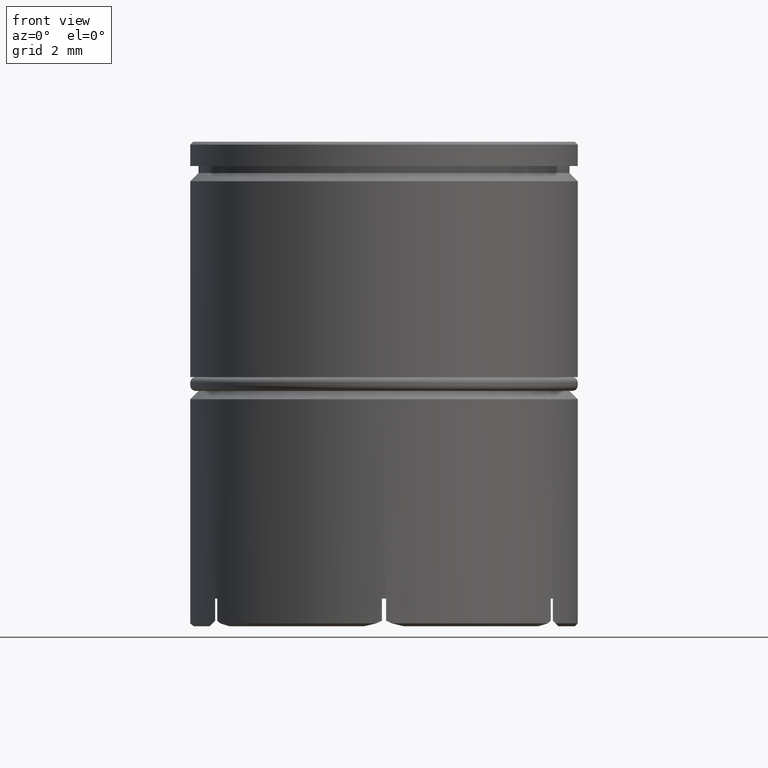
[diagram: clean part render]
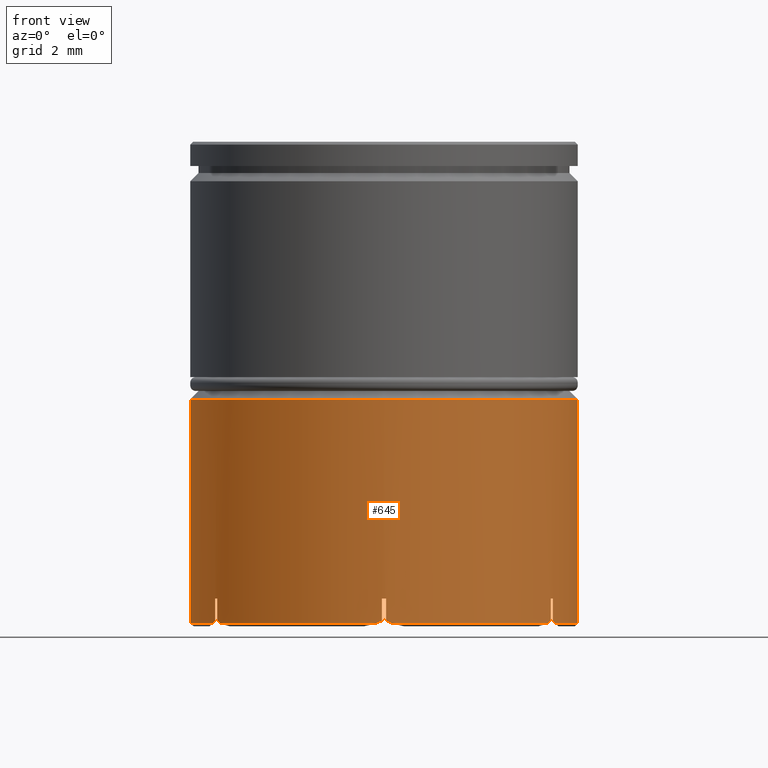
[diagram: same view with one face highlighted and labeled with its STEP entity id]
A machine part, front view. The second image highlights one B-rep face of the part: STEP entity #645.
In plain terms, the highlighted cylindrical surface (partial cylindrical patch) has radius 7 mm, axis along (-0, -0, 1).
Its self-contained STEP definition (entity closure, byte-faithful):
#3 = ORIENTED_EDGE ( 'NONE', *, *, #1076, .F. ) ;
#5 = CARTESIAN_POINT ( 'NONE',  ( -6.023634140239850332, -3.565926491746141735, -17.30000000000000071 ) ) ;
#21 = CYLINDRICAL_SURFACE ( 'NONE', #788, 7.000000000000000888 ) ;
#34 = LINE ( 'NONE', #397, #674 ) ;
#76 = VERTEX_POINT ( 'NONE', #1491 ) ;
#88 = VECTOR ( 'NONE', #664, 1000.000000000000000 ) ;
#89 = LINE ( 'NONE', #1561, #1261 ) ;
#93 = CARTESIAN_POINT ( 'NONE',  ( 0.000000000000000000, 0.000000000000000000, -9.300000000000002487 ) ) ;
#95 = ORIENTED_EDGE ( 'NONE', *, *, #278, .F. ) ;
#109 = CARTESIAN_POINT ( 'NONE',  ( 6.100000000000003197, -3.433656942677874468, -17.30000000000000071 ) ) ;
#120 = DIRECTION ( 'NONE',  ( -0.000000000000000000, -0.000000000000000000, 1.000000000000000000 ) ) ;
#137 = CARTESIAN_POINT ( 'NONE',  ( 0.000000000000000000, 0.000000000000000000, -17.39999999999999858 ) ) ;
#150 =( BOUNDED_CURVE ( )  B_SPLINE_CURVE ( 3, ( #336, #1617, #1355, #989 ),
 .UNSPECIFIED., .F., .T. ) 
 B_SPLINE_CURVE_WITH_KNOTS ( ( 4, 4 ),
 ( 3.624358576915526431, 3.654281804241772846 ),
 .UNSPECIFIED. ) 
 CURVE ( )  GEOMETRIC_REPRESENTATION_ITEM ( )  RATIONAL_B_SPLINE_CURVE ( ( 1.000000000000000000, 0.9999253847640983128, 0.9999253847640983128, 1.000000000000000000 ) ) 
 REPRESENTATION_ITEM ( '' )  );
#155 = CARTESIAN_POINT ( 'NONE',  ( 0.000000000000000000, 0.000000000000000000, -17.39999999999999858 ) ) ;
#176 = EDGE_CURVE ( 'NONE', #738, #1210, #1346, .T. ) ;
#179 = ORIENTED_EDGE ( 'NONE', *, *, #770, .T. ) ;
#188 = DIRECTION ( 'NONE',  ( -0.000000000000000000, -0.000000000000000000, 1.000000000000000000 ) ) ;
#199 = EDGE_CURVE ( 'NONE', #1315, #248, #778, .T. ) ;
#223 = ORIENTED_EDGE ( 'NONE', *, *, #759, .T. ) ;
#233 = DIRECTION ( 'NONE',  ( -0.000000000000000000, -0.000000000000000000, 1.000000000000000000 ) ) ;
#235 = CARTESIAN_POINT ( 'NONE',  ( 0.07636585976015727861, -6.999583434424017092, -17.30000000000000071 ) ) ;
#248 = VERTEX_POINT ( 'NONE', #1398 ) ;
#252 = DIRECTION ( 'NONE',  ( 0.000000000000000000, 0.000000000000000000, -1.000000000000000000 ) ) ;
#258 = CARTESIAN_POINT ( 'NONE',  ( -5.988064803512614276, -3.626010924656295042, -17.33424997690855918 ) ) ;
#262 = CARTESIAN_POINT ( 'NONE',  ( -6.100000000000003197, -3.433656942677875357, -16.50000000000000000 ) ) ;
#264 = VERTEX_POINT ( 'NONE', #407 ) ;
#278 = EDGE_CURVE ( 'NONE', #1315, #969, #34, .T. ) ;
#285 = CARTESIAN_POINT ( 'NONE',  ( -5.951600521272996325, -3.685556477925193697, -17.36758579760201471 ) ) ;
#286 = CARTESIAN_POINT ( 'NONE',  ( -0.07636585976015554389, -6.999583434424017092, -17.30000000000000071 ) ) ;
#291 = DIRECTION ( 'NONE',  ( 1.000000000000000000, 0.000000000000000000, 0.000000000000000000 ) ) ;
#292 = ORIENTED_EDGE ( 'NONE', *, *, #307, .T. ) ;
#307 = EDGE_CURVE ( 'NONE', #556, #1230, #1289, .T. ) ;
#328 = DIRECTION ( 'NONE',  ( 0.000000000000000000, 0.000000000000000000, -1.000000000000000000 ) ) ;
#333 = DIRECTION ( 'NONE',  ( -1.000000000000000000, 0.000000000000000000, 0.000000000000000000 ) ) ;
#336 = CARTESIAN_POINT ( 'NONE',  ( 5.914249455894056595, -3.744549822536331174, -17.39999999999999858 ) ) ;
#355 = EDGE_CURVE ( 'NONE', #1127, #1456, #1073, .T. ) ;
#357 = EDGE_CURVE ( 'NONE', #431, #1153, #814, .T. ) ;
#368 = AXIS2_PLACEMENT_3D ( 'NONE', #1102, #1603, #456 ) ;
#385 = CARTESIAN_POINT ( 'NONE',  ( -0.1461851733959461941, -6.998821701677545803, -17.33424997690855562 ) ) ;
#391 = EDGE_CURVE ( 'NONE', #1153, #631, #522, .T. ) ;
#397 = CARTESIAN_POINT ( 'NONE',  ( 0.07636585976015727861, -6.999583434424017092, 0.000000000000000000 ) ) ;
#407 = CARTESIAN_POINT ( 'NONE',  ( 5.914249455894056595, -3.744549822536331174, -17.39999999999999858 ) ) ;
#408 = CARTESIAN_POINT ( 'NONE',  ( 6.100000000000003197, -3.433656942677874468, 0.000000000000000000 ) ) ;
#409 = ORIENTED_EDGE ( 'NONE', *, *, #1624, .T. ) ;
#411 = FACE_OUTER_BOUND ( 'NONE', #1471, .T. ) ;
#415 = DIRECTION ( 'NONE',  ( -0.000000000000000000, -0.000000000000000000, 1.000000000000000000 ) ) ;
#431 = VERTEX_POINT ( 'NONE', #1019 ) ;
#433 = DIRECTION ( 'NONE',  ( -1.000000000000000000, 0.000000000000000000, 0.000000000000000000 ) ) ;
#435 = VERTEX_POINT ( 'NONE', #1282 ) ;
#438 = EDGE_CURVE ( 'NONE', #1041, #738, #1072, .T. ) ;
#442 = ORIENTED_EDGE ( 'NONE', *, *, #715, .F. ) ;
#446 = DIRECTION ( 'NONE',  ( -0.000000000000000000, -0.000000000000000000, 1.000000000000000000 ) ) ;
#453 = AXIS2_PLACEMENT_3D ( 'NONE', #93, #1249, #1591 ) ;
#456 = DIRECTION ( 'NONE',  ( -1.000000000000000000, 0.000000000000000000, 0.000000000000000000 ) ) ;
#466 = ORIENTED_EDGE ( 'NONE', *, *, #848, .T. ) ;
#468 = CARTESIAN_POINT ( 'NONE',  ( -6.100000000000003197, -3.433656942677875357, -17.30000000000000071 ) ) ;
#515 = CARTESIAN_POINT ( 'NONE',  ( -5.914249455894059260, -3.744549822536325401, -17.39999999999999858 ) ) ;
#522 = LINE ( 'NONE', #1513, #88 ) ;
#535 = AXIS2_PLACEMENT_3D ( 'NONE', #1582, #188, #433 ) ;
#536 = CIRCLE ( 'NONE', #1318, 7.000000000000000888 ) ;
#556 = VERTEX_POINT ( 'NONE', #633 ) ;
#582 = DIRECTION ( 'NONE',  ( -1.000000000000000000, 5.329070518200751394E-14, 0.000000000000000000 ) ) ;
#585 = CIRCLE ( 'NONE', #535, 7.000000000000000888 ) ;
#588 = VERTEX_POINT ( 'NONE', #1036 ) ;
#605 = ORIENTED_EDGE ( 'NONE', *, *, #850, .T. ) ;
#610 = ORIENTED_EDGE ( 'NONE', *, *, #391, .T. ) ;
#625 = CARTESIAN_POINT ( 'NONE',  ( 6.023634140239847667, -3.565926491746145288, -17.30000000000000071 ) ) ;
#631 = VERTEX_POINT ( 'NONE', #812 ) ;
#633 = CARTESIAN_POINT ( 'NONE',  ( -6.023634140239850332, -3.565926491746141735, -17.30000000000000071 ) ) ;
#643 = CARTESIAN_POINT ( 'NONE',  ( -0.2857505441059412510, -6.994165184390713108, -17.39999999999999858 ) ) ;
#645 = ADVANCED_FACE ( 'NONE', ( #411 ), #21, .T. ) ;
#653 = ORIENTED_EDGE ( 'NONE', *, *, #1335, .F. ) ;
#663 = DIRECTION ( 'NONE',  ( 0.000000000000000000, 0.000000000000000000, -1.000000000000000000 ) ) ;
#664 = DIRECTION ( 'NONE',  ( -0.000000000000000000, -0.000000000000000000, 1.000000000000000000 ) ) ;
#669 = LINE ( 'NONE', #1399, #1465 ) ;
#674 = VECTOR ( 'NONE', #929, 1000.000000000000000 ) ;
#678 = CARTESIAN_POINT ( 'NONE',  ( -0.2857505441059412510, -6.994165184390713108, -17.39999999999999858 ) ) ;
#700 = ORIENTED_EDGE ( 'NONE', *, *, #1114, .F. ) ;
#706 = AXIS2_PLACEMENT_3D ( 'NONE', #1613, #415, #333 ) ;
#715 = EDGE_CURVE ( 'NONE', #1089, #1210, #796, .T. ) ;
#717 = CARTESIAN_POINT ( 'NONE',  ( -6.200000000000000178, -3.249615361854388595, -17.39999999999999858 ) ) ;
#719 = VERTEX_POINT ( 'NONE', #1172 ) ;
#720 = CARTESIAN_POINT ( 'NONE',  ( 7.000000000000000888, 0.000000000000000000, -17.39999999999999858 ) ) ;
#723 = CARTESIAN_POINT ( 'NONE',  ( 6.167585797602020747, -3.311459005636522068, -17.36758579760201471 ) ) ;
#731 = ORIENTED_EDGE ( 'NONE', *, *, #357, .T. ) ;
#736 = VERTEX_POINT ( 'NONE', #1332 ) ;
#738 = VERTEX_POINT ( 'NONE', #717 ) ;
#747 = LINE ( 'NONE', #1397, #864 ) ;
#759 = EDGE_CURVE ( 'NONE', #1089, #588, #916, .T. ) ;
#761 = CARTESIAN_POINT ( 'NONE',  ( 0.2159852763290228406, -6.997015483561718874, -17.36758579760201471 ) ) ;
#770 = EDGE_CURVE ( 'NONE', #1230, #1127, #585, .T. ) ;
#778 =( BOUNDED_CURVE ( )  B_SPLINE_CURVE ( 3, ( #235, #998, #761, #893 ),
 .UNSPECIFIED., .F., .T. ) 
 B_SPLINE_CURVE_WITH_KNOTS ( ( 4, 4 ),
 ( 2.628903502937813386, 2.658826730264059801 ),
 .UNSPECIFIED. ) 
 CURVE ( )  GEOMETRIC_REPRESENTATION_ITEM ( )  RATIONAL_B_SPLINE_CURVE ( ( 1.000000000000000000, 0.9999253847640983128, 0.9999253847640983128, 1.000000000000000000 ) ) 
 REPRESENTATION_ITEM ( '' )  );
#788 = AXIS2_PLACEMENT_3D ( 'NONE', #933, #1288, #291 ) ;
#790 = CIRCLE ( 'NONE', #368, 7.000000000000000888 ) ;
#796 = LINE ( 'NONE', #1299, #1416 ) ;
#812 = CARTESIAN_POINT ( 'NONE',  ( 7.000000000000000888, 0.000000000000000000, -9.300000000000002487 ) ) ;
#814 = CIRCLE ( 'NONE', #1571, 7.000000000000000888 ) ;
#837 = VECTOR ( 'NONE', #120, 1000.000000000000000 ) ;
#848 = EDGE_CURVE ( 'NONE', #736, #76, #536, .T. ) ;
#850 = EDGE_CURVE ( 'NONE', #719, #969, #790, .T. ) ;
#854 = CARTESIAN_POINT ( 'NONE',  ( -5.914249455894059260, -3.744549822536325401, -17.39999999999999858 ) ) ;
#856 = ORIENTED_EDGE ( 'NONE', *, *, #199, .T. ) ;
#861 = ORIENTED_EDGE ( 'NONE', *, *, #438, .T. ) ;
#862 = CIRCLE ( 'NONE', #706, 7.000000000000000888 ) ;
#864 = VECTOR ( 'NONE', #252, 1000.000000000000000 ) ;
#873 = EDGE_CURVE ( 'NONE', #435, #431, #1567, .T. ) ;
#893 = CARTESIAN_POINT ( 'NONE',  ( 0.2857505441059460249, -6.994165184390713108, -17.39999999999999858 ) ) ;
#901 = LINE ( 'NONE', #408, #1156 ) ;
#902 = EDGE_CURVE ( 'NONE', #264, #1325, #150, .T. ) ;
#906 = DIRECTION ( 'NONE',  ( -1.000000000000000000, 3.552713678800500929E-15, 0.000000000000000000 ) ) ;
#908 = CARTESIAN_POINT ( 'NONE',  ( -6.200000000000000178, -3.249615361854388595, -17.39999999999999858 ) ) ;
#910 = VERTEX_POINT ( 'NONE', #1126 ) ;
#916 = CIRCLE ( 'NONE', #1125, 7.000000000000000888 ) ;
#926 = CARTESIAN_POINT ( 'NONE',  ( -0.2159852763290208699, -6.997015483561718874, -17.36758579760201471 ) ) ;
#929 = DIRECTION ( 'NONE',  ( -0.000000000000000000, -0.000000000000000000, 1.000000000000000000 ) ) ;
#933 = CARTESIAN_POINT ( 'NONE',  ( 0.000000000000000000, 0.000000000000000000, 0.000000000000000000 ) ) ;
#955 = DIRECTION ( 'NONE',  ( -1.000000000000000000, -2.664535259100375697E-15, 0.000000000000000000 ) ) ;
#968 = CARTESIAN_POINT ( 'NONE',  ( 0.000000000000000000, 0.000000000000000000, -16.50000000000000000 ) ) ;
#969 = VERTEX_POINT ( 'NONE', #1382 ) ;
#981 = LINE ( 'NONE', #1259, #837 ) ;
#989 = CARTESIAN_POINT ( 'NONE',  ( 6.023634140239847667, -3.565926491746145288, -17.30000000000000071 ) ) ;
#990 = EDGE_CURVE ( 'NONE', #556, #588, #981, .T. ) ;
#994 = DIRECTION ( 'NONE',  ( -1.000000000000000000, 0.000000000000000000, 0.000000000000000000 ) ) ;
#998 = CARTESIAN_POINT ( 'NONE',  ( 0.1461851733959463606, -6.998821701677544915, -17.33424997690855562 ) ) ;
#1013 = DIRECTION ( 'NONE',  ( -0.000000000000000000, -0.000000000000000000, 1.000000000000000000 ) ) ;
#1019 = CARTESIAN_POINT ( 'NONE',  ( 6.200000000000001066, -3.249615361854383266, -17.39999999999999858 ) ) ;
#1026 = CARTESIAN_POINT ( 'NONE',  ( -6.134249976908560775, -3.372810777021251649, -17.33424997690855918 ) ) ;
#1036 = CARTESIAN_POINT ( 'NONE',  ( -6.023634140239851220, -3.565926491746138183, -16.50000000000000000 ) ) ;
#1041 = VERTEX_POINT ( 'NONE', #1405 ) ;
#1052 = CIRCLE ( 'NONE', #453, 7.000000000000000888 ) ;
#1072 = CIRCLE ( 'NONE', #1623, 7.000000000000000888 ) ;
#1073 =( BOUNDED_CURVE ( )  B_SPLINE_CURVE ( 3, ( #643, #926, #385, #1300 ),
 .UNSPECIFIED., .F., .T. ) 
 B_SPLINE_CURVE_WITH_KNOTS ( ( 4, 4 ),
 ( 3.624358576915527319, 3.654281804241773290 ),
 .UNSPECIFIED. ) 
 CURVE ( )  GEOMETRIC_REPRESENTATION_ITEM ( )  RATIONAL_B_SPLINE_CURVE ( ( 1.000000000000000000, 0.9999253847640983128, 0.9999253847640983128, 1.000000000000000000 ) ) 
 REPRESENTATION_ITEM ( '' )  );
#1076 = EDGE_CURVE ( 'NONE', #435, #76, #901, .T. ) ;
#1089 = VERTEX_POINT ( 'NONE', #262 ) ;
#1102 = CARTESIAN_POINT ( 'NONE',  ( 0.000000000000000000, 0.000000000000000000, -16.50000000000000000 ) ) ;
#1107 = ORIENTED_EDGE ( 'NONE', *, *, #176, .T. ) ;
#1110 = ORIENTED_EDGE ( 'NONE', *, *, #902, .T. ) ;
#1114 = EDGE_CURVE ( 'NONE', #1041, #910, #669, .T. ) ;
#1123 = ORIENTED_EDGE ( 'NONE', *, *, #355, .T. ) ;
#1125 = AXIS2_PLACEMENT_3D ( 'NONE', #1342, #446, #955 ) ;
#1126 = CARTESIAN_POINT ( 'NONE',  ( -7.000000000000000888, 8.572527594031474176E-16, -9.300000000000002487 ) ) ;
#1127 = VERTEX_POINT ( 'NONE', #678 ) ;
#1153 = VERTEX_POINT ( 'NONE', #720 ) ;
#1156 = VECTOR ( 'NONE', #1013, 1000.000000000000000 ) ;
#1160 = CARTESIAN_POINT ( 'NONE',  ( -6.100000000000003197, -3.433656942677875357, -17.30000000000000071 ) ) ;
#1168 = CARTESIAN_POINT ( 'NONE',  ( -6.167585797602018083, -3.311459005636527841, -17.36758579760201471 ) ) ;
#1172 = CARTESIAN_POINT ( 'NONE',  ( -0.07636585976015164423, -6.999583434424015316, -16.50000000000000000 ) ) ;
#1177 = DIRECTION ( 'NONE',  ( -0.000000000000000000, -0.000000000000000000, 1.000000000000000000 ) ) ;
#1194 = EDGE_CURVE ( 'NONE', #719, #1456, #89, .T. ) ;
#1210 = VERTEX_POINT ( 'NONE', #468 ) ;
#1214 = ORIENTED_EDGE ( 'NONE', *, *, #1223, .T. ) ;
#1223 = EDGE_CURVE ( 'NONE', #248, #264, #862, .T. ) ;
#1225 = DIRECTION ( 'NONE',  ( -0.000000000000000000, -0.000000000000000000, 1.000000000000000000 ) ) ;
#1230 = VERTEX_POINT ( 'NONE', #854 ) ;
#1233 = CARTESIAN_POINT ( 'NONE',  ( 6.200000000000001066, -3.249615361854383266, -17.39999999999999858 ) ) ;
#1249 = DIRECTION ( 'NONE',  ( 0.000000000000000000, 0.000000000000000000, -1.000000000000000000 ) ) ;
#1259 = CARTESIAN_POINT ( 'NONE',  ( -6.023634140239850332, -3.565926491746141735, 0.000000000000000000 ) ) ;
#1261 = VECTOR ( 'NONE', #328, 1000.000000000000000 ) ;
#1282 = CARTESIAN_POINT ( 'NONE',  ( 6.100000000000003197, -3.433656942677874468, -17.30000000000000071 ) ) ;
#1288 = DIRECTION ( 'NONE',  ( -0.000000000000000000, -0.000000000000000000, 1.000000000000000000 ) ) ;
#1289 =( BOUNDED_CURVE ( )  B_SPLINE_CURVE ( 3, ( #5, #258, #285, #515 ),
 .UNSPECIFIED., .F., .T. ) 
 B_SPLINE_CURVE_WITH_KNOTS ( ( 4, 4 ),
 ( 2.628903502937813830, 2.658826730264059357 ),
 .UNSPECIFIED. ) 
 CURVE ( )  GEOMETRIC_REPRESENTATION_ITEM ( )  RATIONAL_B_SPLINE_CURVE ( ( 1.000000000000000000, 0.9999253847640983128, 0.9999253847640983128, 1.000000000000000000 ) ) 
 REPRESENTATION_ITEM ( '' )  );
#1299 = CARTESIAN_POINT ( 'NONE',  ( -6.100000000000003197, -3.433656942677875357, 0.000000000000000000 ) ) ;
#1300 = CARTESIAN_POINT ( 'NONE',  ( -0.07636585976015554389, -6.999583434424017092, -17.30000000000000071 ) ) ;
#1315 = VERTEX_POINT ( 'NONE', #1533 ) ;
#1318 = AXIS2_PLACEMENT_3D ( 'NONE', #968, #1225, #582 ) ;
#1325 = VERTEX_POINT ( 'NONE', #625 ) ;
#1332 = CARTESIAN_POINT ( 'NONE',  ( 6.023634140239849444, -3.565926491746140847, -16.50000000000000000 ) ) ;
#1335 = EDGE_CURVE ( 'NONE', #736, #1325, #747, .T. ) ;
#1342 = CARTESIAN_POINT ( 'NONE',  ( 0.000000000000000000, 0.000000000000000000, -16.50000000000000000 ) ) ;
#1344 = ORIENTED_EDGE ( 'NONE', *, *, #990, .F. ) ;
#1346 =( BOUNDED_CURVE ( )  B_SPLINE_CURVE ( 3, ( #908, #1168, #1026, #1160 ),
 .UNSPECIFIED., .F., .T. ) 
 B_SPLINE_CURVE_WITH_KNOTS ( ( 4, 4 ),
 ( 3.624358576915527763, 3.654281804241773290 ),
 .UNSPECIFIED. ) 
 CURVE ( )  GEOMETRIC_REPRESENTATION_ITEM ( )  RATIONAL_B_SPLINE_CURVE ( ( 1.000000000000000000, 0.9999253847640983128, 0.9999253847640983128, 1.000000000000000000 ) ) 
 REPRESENTATION_ITEM ( '' )  );
#1355 = CARTESIAN_POINT ( 'NONE',  ( 5.988064803512612500, -3.626010924656296375, -17.33424997690855562 ) ) ;
#1382 = CARTESIAN_POINT ( 'NONE',  ( 0.07636585976015337895, -6.999583434424016204, -16.50000000000000000 ) ) ;
#1397 = CARTESIAN_POINT ( 'NONE',  ( 6.023634140239847667, -3.565926491746145288, 0.000000000000000000 ) ) ;
#1398 = CARTESIAN_POINT ( 'NONE',  ( 0.2857505441059460249, -6.994165184390713108, -17.39999999999999858 ) ) ;
#1399 = CARTESIAN_POINT ( 'NONE',  ( -7.000000000000000888, 8.572527594031474176E-16, 0.000000000000000000 ) ) ;
#1405 = CARTESIAN_POINT ( 'NONE',  ( -7.000000000000000888, 8.572527594031474176E-16, -17.39999999999999858 ) ) ;
#1416 = VECTOR ( 'NONE', #663, 1000.000000000000000 ) ;
#1456 = VERTEX_POINT ( 'NONE', #286 ) ;
#1465 = VECTOR ( 'NONE', #1177, 1000.000000000000000 ) ;
#1471 = EDGE_LOOP ( 'NONE', ( #700, #861, #1107, #442, #223, #1344, #292, #179, #1123, #1569, #605, #95, #856, #1214, #1110, #653, #466, #3, #1589, #731, #610, #409 ) ) ;
#1491 = CARTESIAN_POINT ( 'NONE',  ( 6.100000000000003197, -3.433656942677874468, -16.50000000000000000 ) ) ;
#1509 = CARTESIAN_POINT ( 'NONE',  ( 6.134249976908562552, -3.372810777021247652, -17.33424997690855562 ) ) ;
#1513 = CARTESIAN_POINT ( 'NONE',  ( 7.000000000000000888, 0.000000000000000000, 0.000000000000000000 ) ) ;
#1532 = DIRECTION ( 'NONE',  ( -0.000000000000000000, -0.000000000000000000, 1.000000000000000000 ) ) ;
#1533 = CARTESIAN_POINT ( 'NONE',  ( 0.07636585976015727861, -6.999583434424017092, -17.30000000000000071 ) ) ;
#1561 = CARTESIAN_POINT ( 'NONE',  ( -0.07636585976015554389, -6.999583434424017092, 0.000000000000000000 ) ) ;
#1567 =( BOUNDED_CURVE ( )  B_SPLINE_CURVE ( 3, ( #109, #1509, #723, #1233 ),
 .UNSPECIFIED., .F., .T. ) 
 B_SPLINE_CURVE_WITH_KNOTS ( ( 4, 4 ),
 ( 2.628903502937813386, 2.658826730264059801 ),
 .UNSPECIFIED. ) 
 CURVE ( )  GEOMETRIC_REPRESENTATION_ITEM ( )  RATIONAL_B_SPLINE_CURVE ( ( 1.000000000000000000, 0.9999253847640983128, 0.9999253847640983128, 1.000000000000000000 ) ) 
 REPRESENTATION_ITEM ( '' )  );
#1569 = ORIENTED_EDGE ( 'NONE', *, *, #1194, .F. ) ;
#1571 = AXIS2_PLACEMENT_3D ( 'NONE', #155, #1532, #906 ) ;
#1582 = CARTESIAN_POINT ( 'NONE',  ( 0.000000000000000000, 0.000000000000000000, -17.39999999999999858 ) ) ;
#1589 = ORIENTED_EDGE ( 'NONE', *, *, #873, .T. ) ;
#1591 = DIRECTION ( 'NONE',  ( 1.000000000000000000, 0.000000000000000000, 0.000000000000000000 ) ) ;
#1603 = DIRECTION ( 'NONE',  ( -0.000000000000000000, -0.000000000000000000, 1.000000000000000000 ) ) ;
#1613 = CARTESIAN_POINT ( 'NONE',  ( 0.000000000000000000, 0.000000000000000000, -17.39999999999999858 ) ) ;
#1617 = CARTESIAN_POINT ( 'NONE',  ( 5.951600521272994548, -3.685556477925197694, -17.36758579760201471 ) ) ;
#1623 = AXIS2_PLACEMENT_3D ( 'NONE', #137, #233, #994 ) ;
#1624 = EDGE_CURVE ( 'NONE', #631, #910, #1052, .T. ) ;